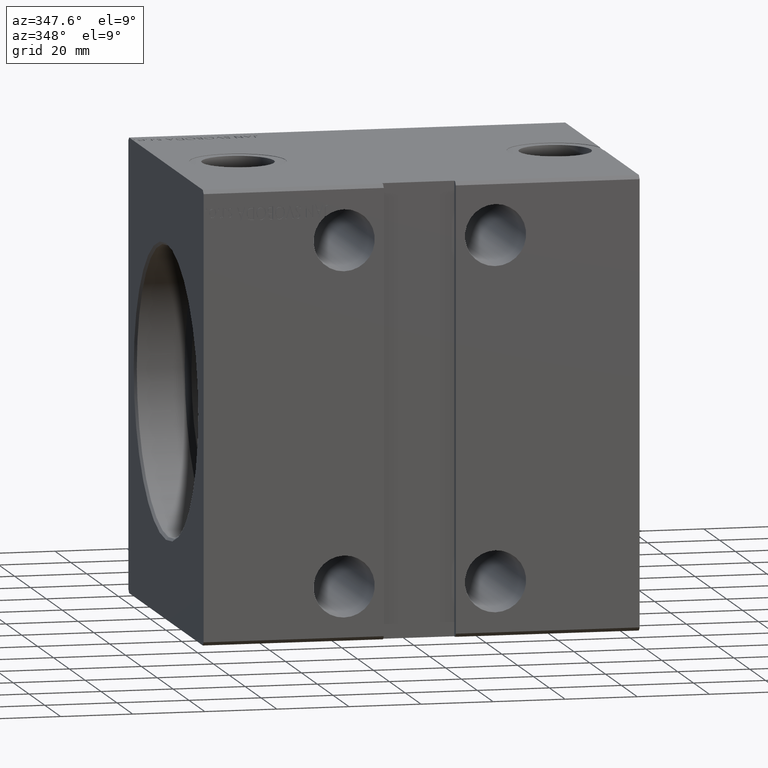
[diagram: clean part render]
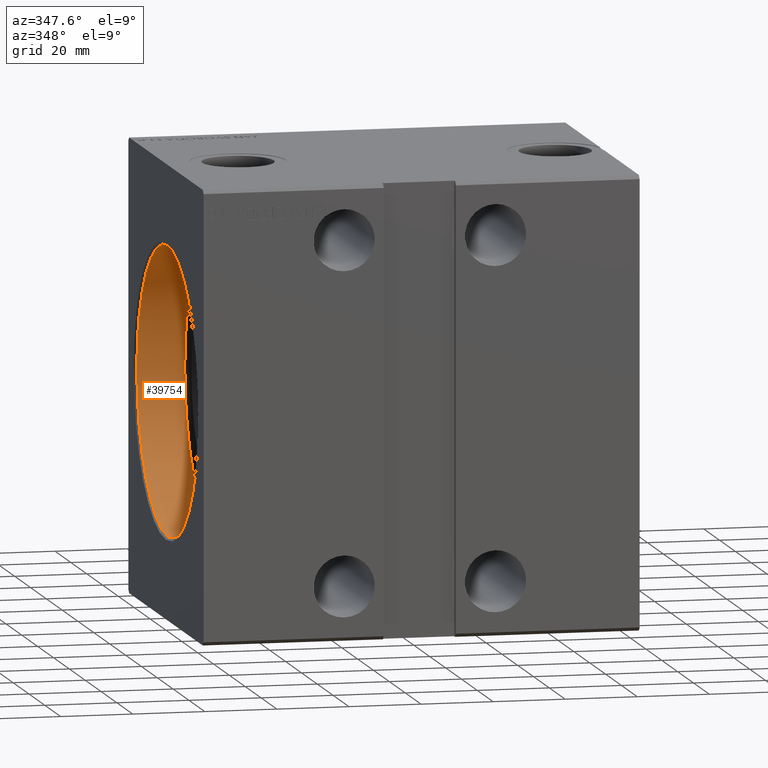
[diagram: same view with one face highlighted and labeled with its STEP entity id]
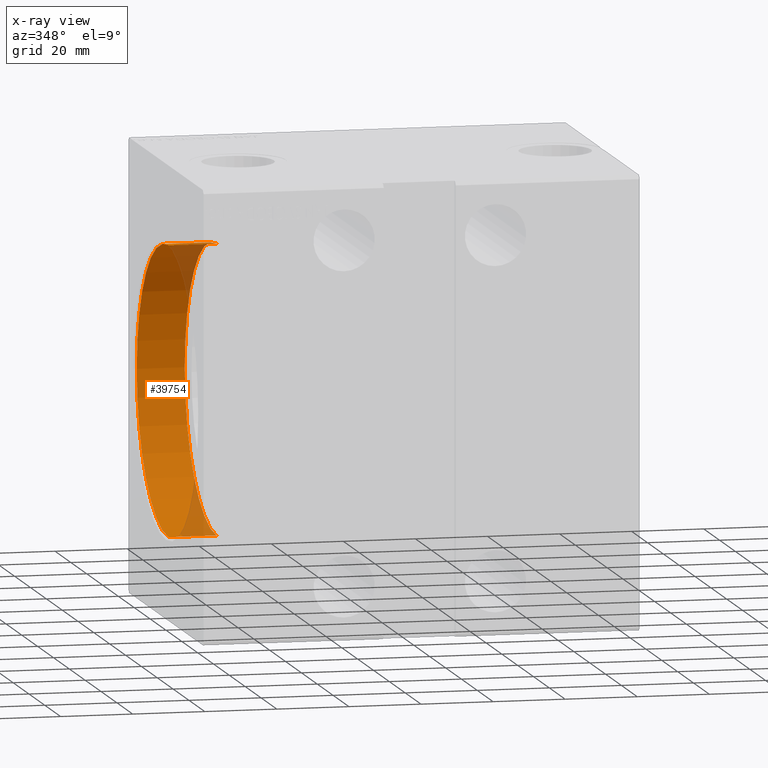
[diagram: x-ray of the same camera — body ghosted, the highlighted face saturated]
A machine part, auxiliary view. The second image highlights one B-rep face of the part: STEP entity #39754.
The next image is the same camera in x-ray: the body ghosted, the highlighted face saturated — about 12% of this face is hidden behind the body in this view.
In plain terms, the highlighted cylindrical surface (partial cylindrical patch) has radius 40 mm, axis along (-1, -0, -0).
Its self-contained STEP definition (entity closure, byte-faithful):
#779 = DIRECTION ( 'NONE',  ( 0.000000000000000000, 0.000000000000000000, 1.000000000000000000 ) ) ;
#834 = DIRECTION ( 'NONE',  ( 0.000000000000000000, 0.000000000000000000, -1.000000000000000000 ) ) ;
#1041 = DIRECTION ( 'NONE',  ( -1.000000000000000000, 0.000000000000000000, 0.000000000000000000 ) ) ;
#1190 = EDGE_CURVE ( 'NONE', #38230, #26478, #21421, .T. ) ;
#2304 = FACE_OUTER_BOUND ( 'NONE', #3816, .T. ) ;
#3723 = VECTOR ( 'NONE', #15478, 1000.000000000000000 ) ;
#3816 = EDGE_LOOP ( 'NONE', ( #29369, #33290, #25192, #22111 ) ) ;
#4191 = EDGE_CURVE ( 'NONE', #19661, #38230, #5894, .T. ) ;
#4236 = CARTESIAN_POINT ( 'NONE',  ( 0.7000000000000130562, 0.000000000000000000, 0.000000000000000000 ) ) ;
#5031 = DIRECTION ( 'NONE',  ( -1.000000000000000000, -0.000000000000000000, -0.000000000000000000 ) ) ;
#5720 = DIRECTION ( 'NONE',  ( -1.000000000000000000, 0.000000000000000000, 0.000000000000000000 ) ) ;
#5894 = CIRCLE ( 'NONE', #12660, 40.00000000000000000 ) ;
#9548 = CARTESIAN_POINT ( 'NONE',  ( 14.00000000000000000, 0.000000000000000000, 40.00000000000000000 ) ) ;
#10381 = EDGE_CURVE ( 'NONE', #19661, #15004, #21170, .T. ) ;
#12660 = AXIS2_PLACEMENT_3D ( 'NONE', #37603, #5720, #25255 ) ;
#12884 = CARTESIAN_POINT ( 'NONE',  ( 0.7000000000000130562, 4.898587196589413026E-15, -40.00000000000000000 ) ) ;
#15004 = VERTEX_POINT ( 'NONE', #39086 ) ;
#15478 = DIRECTION ( 'NONE',  ( -1.000000000000000000, -0.000000000000000000, -0.000000000000000000 ) ) ;
#19227 = AXIS2_PLACEMENT_3D ( 'NONE', #35638, #29891, #779 ) ;
#19661 = VERTEX_POINT ( 'NONE', #9548 ) ;
#21170 = LINE ( 'NONE', #27540, #27017 ) ;
#21421 = LINE ( 'NONE', #40775, #3723 ) ;
#22111 = ORIENTED_EDGE ( 'NONE', *, *, #40285, .T. ) ;
#22665 = CYLINDRICAL_SURFACE ( 'NONE', #19227, 40.00000000000000000 ) ;
#23270 = CIRCLE ( 'NONE', #32120, 40.00000000000000000 ) ;
#25192 = ORIENTED_EDGE ( 'NONE', *, *, #10381, .T. ) ;
#25255 = DIRECTION ( 'NONE',  ( 0.000000000000000000, 0.000000000000000000, 1.000000000000000000 ) ) ;
#26478 = VERTEX_POINT ( 'NONE', #12884 ) ;
#27017 = VECTOR ( 'NONE', #5031, 1000.000000000000000 ) ;
#27540 = CARTESIAN_POINT ( 'NONE',  ( 14.00000000000000000, 0.000000000000000000, 40.00000000000000000 ) ) ;
#29369 = ORIENTED_EDGE ( 'NONE', *, *, #1190, .F. ) ;
#29891 = DIRECTION ( 'NONE',  ( -1.000000000000000000, -0.000000000000000000, -0.000000000000000000 ) ) ;
#32120 = AXIS2_PLACEMENT_3D ( 'NONE', #4236, #1041, #834 ) ;
#33290 = ORIENTED_EDGE ( 'NONE', *, *, #4191, .F. ) ;
#35638 = CARTESIAN_POINT ( 'NONE',  ( 14.00000000000000000, 0.000000000000000000, 0.000000000000000000 ) ) ;
#37603 = CARTESIAN_POINT ( 'NONE',  ( 14.00000000000000000, 0.000000000000000000, 0.000000000000000000 ) ) ;
#38230 = VERTEX_POINT ( 'NONE', #41118 ) ;
#39086 = CARTESIAN_POINT ( 'NONE',  ( 0.7000000000000130562, 0.000000000000000000, 40.00000000000000000 ) ) ;
#39754 = ADVANCED_FACE ( 'NONE', ( #2304 ), #22665, .F. ) ;
#40285 = EDGE_CURVE ( 'NONE', #15004, #26478, #23270, .T. ) ;
#40775 = CARTESIAN_POINT ( 'NONE',  ( 14.00000000000000000, 4.898587196589413026E-15, -40.00000000000000000 ) ) ;
#41118 = CARTESIAN_POINT ( 'NONE',  ( 14.00000000000000000, 4.898587196589413026E-15, -40.00000000000000000 ) ) ;